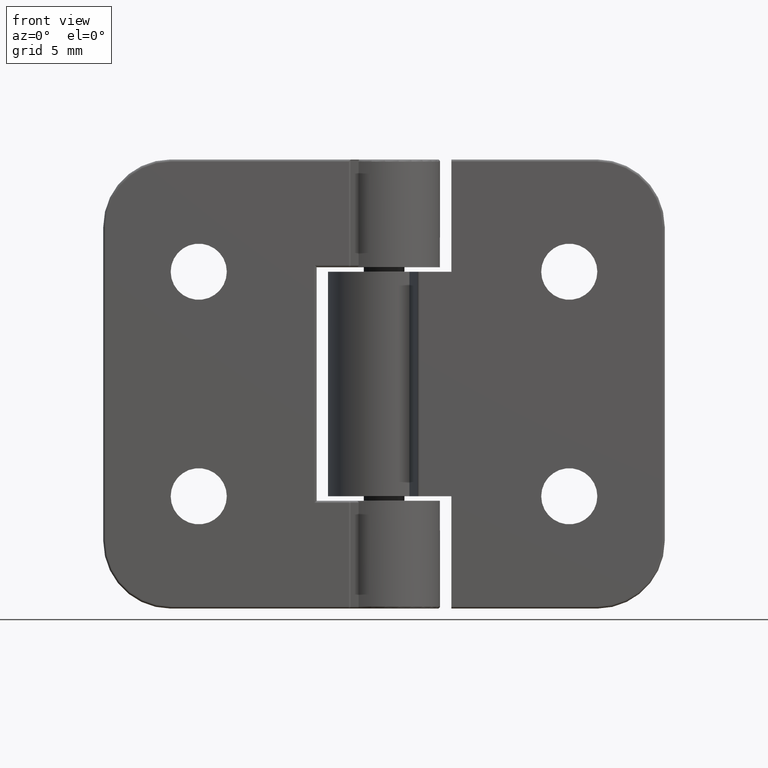
[diagram: clean part render]
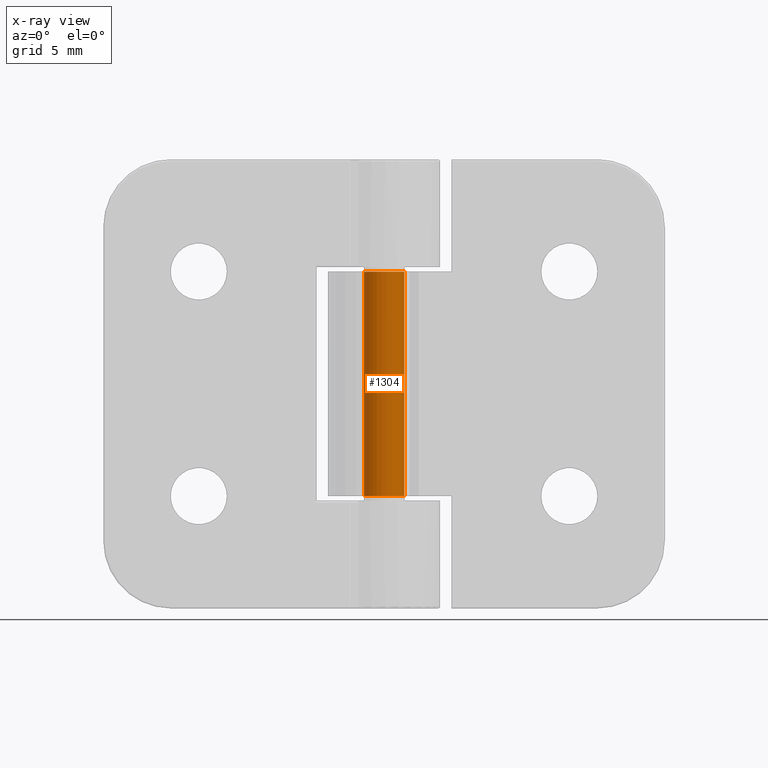
[diagram: x-ray — body ghosted, one internal face saturated and labeled with its STEP entity id]
A machine part, front view, then the same camera in x-ray: the body is ghosted and one INTERNAL B-rep face — a face not visible from any outside direction — is saturated and labeled: STEP entity #1304.
In plain terms, the highlighted cylindrical surface (bore or boss wall) has radius 0.9 mm, axis along (0, 0, 1).
Its self-contained STEP definition (entity closure, byte-faithful):
#78=FACE_BOUND('',#292,.T.);
#186=FACE_OUTER_BOUND('',#291,.T.);
#291=EDGE_LOOP('',(#1178));
#292=EDGE_LOOP('',(#1179));
#510=CIRCLE('',#1423,0.9);
#518=CIRCLE('',#1434,0.9);
#617=VERTEX_POINT('',#2248);
#632=VERTEX_POINT('',#2283);
#771=EDGE_CURVE('',#617,#617,#510,.T.);
#788=EDGE_CURVE('',#632,#632,#518,.T.);
#1178=ORIENTED_EDGE('',*,*,#771,.T.);
#1179=ORIENTED_EDGE('',*,*,#788,.T.);
#1226=CYLINDRICAL_SURFACE('',#1481,0.9);
#1304=ADVANCED_FACE('',(#186,#78),#1226,.F.);
#1423=AXIS2_PLACEMENT_3D('',#2249,#1761,#1762);
#1434=AXIS2_PLACEMENT_3D('',#2284,#1792,#1793);
#1481=AXIS2_PLACEMENT_3D('',#2374,#1907,#1908);
#1761=DIRECTION('center_axis',(0.,0.,-1.));
#1762=DIRECTION('ref_axis',(-1.,0.,0.));
#1792=DIRECTION('center_axis',(0.,0.,1.));
#1793=DIRECTION('ref_axis',(-1.,0.,0.));
#1907=DIRECTION('center_axis',(0.,0.,-1.));
#1908=DIRECTION('ref_axis',(-1.,0.,0.));
#2248=CARTESIAN_POINT('',(0.9,3.5,-5.));
#2249=CARTESIAN_POINT('Origin',(0.,3.5,-5.));
#2283=CARTESIAN_POINT('',(0.9,3.5,5.));
#2284=CARTESIAN_POINT('Origin',(0.,3.5,5.));
#2374=CARTESIAN_POINT('Origin',(0.,3.5,10.));